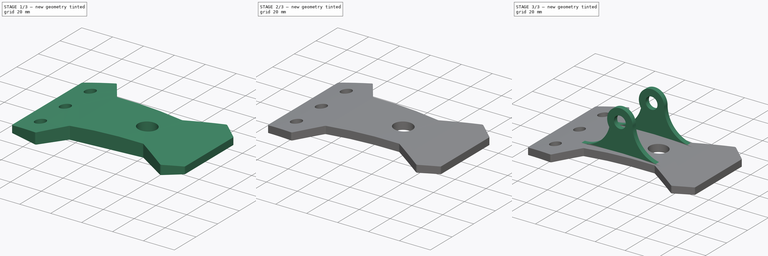
[diagram: build sequence overview — one tinted view per stage of 3, left to right]
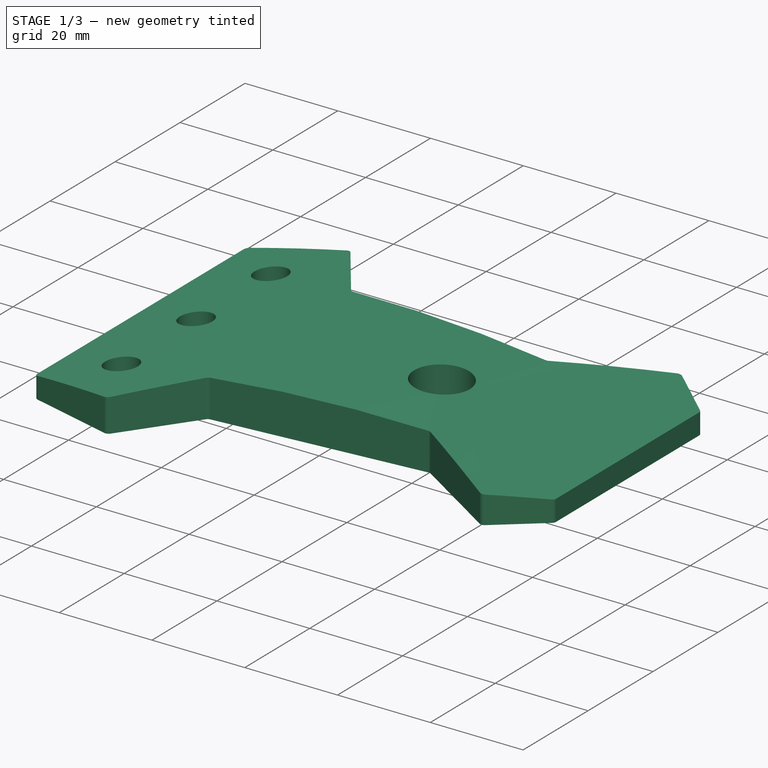
[diagram: stage 1 of 3 — iso view after this stage's code; geometry added in this stage tinted green]
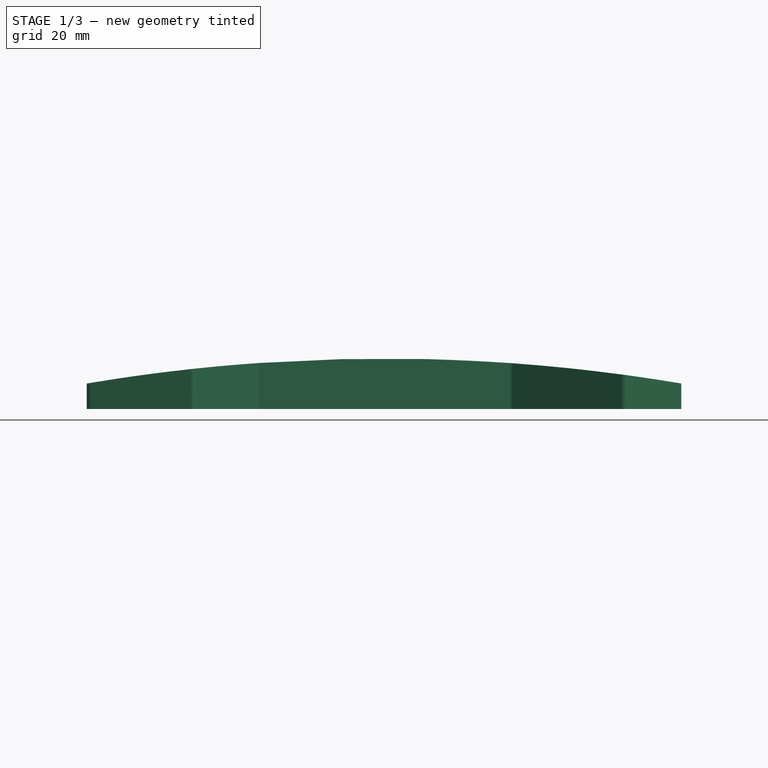
[diagram: stage 1 of 3 — front view after this stage's code; geometry added in this stage tinted green]
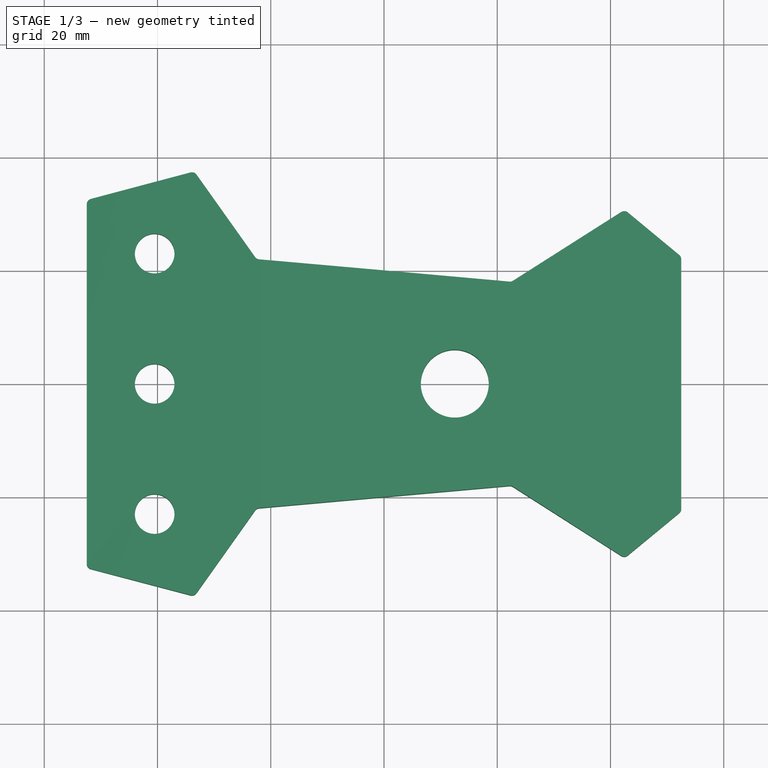
[diagram: stage 1 of 3 — top view after this stage's code; geometry added in this stage tinted green]
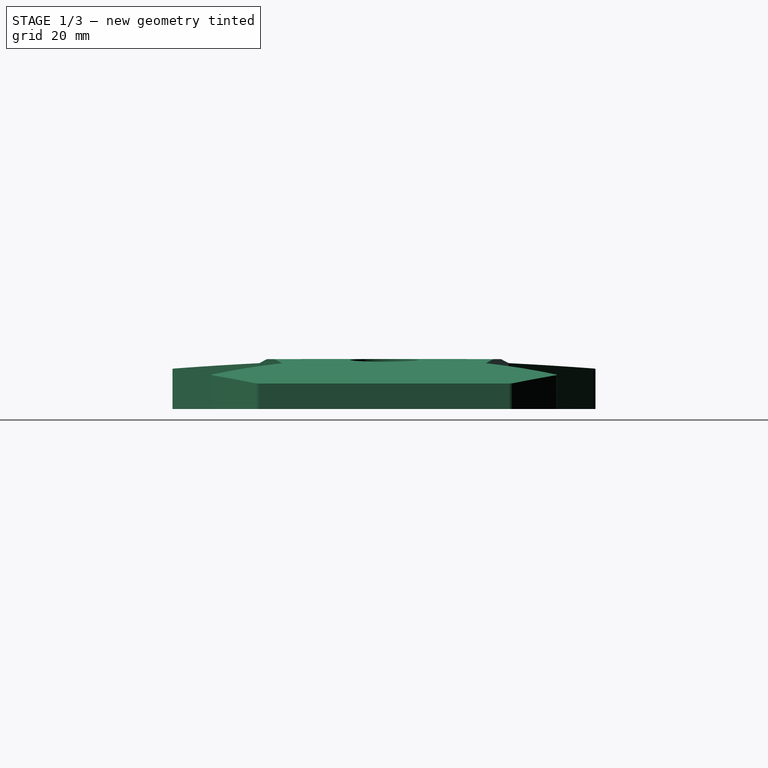
[diagram: stage 1 of 3 — right view after this stage's code; geometry added in this stage tinted green]
FCSTD DOCUMENT  (FreeCAD 0.18R4 (GitTag))
Label: ClipLampeAlix
License: All rights reserved
LicenseURL: http://en.wikipedia.org/wiki/All_rights_reserved
objects: Sketcher::SketchObject×5, PartDesign::Pad×3, PartDesign::Plane×2, PartDesign::Pocket×2, Spreadsheet::Sheet×1, PartDesign::Mirrored×1, PartDesign::Body×1
note: 19 computed .brp shape members not serialized (recipe doc carries the construction recipe); baked Part::Feature solids carry a one-line shape summary decoded from their .brp

FEATURE [Sketcher::SketchObject] Sketch  label="BasePlateFlat"
  MapMode = 5
  Support = -> [XY_Plane]
  expr: Constraints[77] = Dimensions.AngleRadius
  expr: Constraints[76] = Dimensions.AngleRadius
  expr: Constraints[73] = Dimensions.AngleRadius
  expr: Constraints[70] = Dimensions.AngleRadius
  expr: Constraints[68] = Dimensions.AngleRadius
  expr: Constraints[67] = Dimensions.AngleRadius
  expr: Constraints[39] = Dimensions.WireHoleToHeight6
  expr: Constraints[38] = Dimensions.SuckerHoleCentreToHeight1
  expr: Constraints[74] = Dimensions.AngleRadius
  expr: Constraints[32] = Dimensions.WidthTo1
  expr: Constraints[3] = Dimensions.SuckerHolesSeparation
  expr: Constraints[0] = Dimensions.SuckerHoleRadius
  expr: Constraints[36] = Dimensions.WidthTo5
  expr: Constraints[34] = Dimensions.WidthTo3
  expr: Constraints[18] = Dimensions.Height1
  expr: Constraints[31] = Dimensions.WidthTo1 / 2
  expr: Constraints[21] = Dimensions.Height3
  expr: Constraints[66] = Dimensions.AngleRadius
  expr: Constraints[33] = Dimensions.WidthTo2
  expr: Constraints[69] = Dimensions.AngleRadius
  expr: Constraints[71] = Dimensions.AngleRadius
  expr: Constraints[23] = Dimensions.Height5
  expr: Constraints[19] = Dimensions.Height6
  expr: Constraints[22] = Dimensions.Height4
  expr: Constraints[75] = Dimensions.AngleRadius
  expr: Constraints[5] = Dimensions.WireHoleRadius
  expr: Constraints[2] = Dimensions.SuckerHoleRadius
  expr: Constraints[72] = Dimensions.AngleRadius
  expr: Constraints[1] = Dimensions.SuckerHoleRadius
  expr: Constraints[35] = Dimensions.WidthTo4
  sketch-geometry (41):
    g0: Circle CenterX=-40.5 CenterY=0 CenterZ=0 NormalX=0 NormalY=0 NormalZ=1 AngleXU=0 Radius=3.5
    g1: Circle CenterX=-40.5 CenterY=23 CenterZ=0 NormalX=0 NormalY=0 NormalZ=1 AngleXU=0 Radius=3.5
    g2: Circle CenterX=-40.5 CenterY=-23 CenterZ=0 NormalX=0 NormalY=0 NormalZ=1 AngleXU=0 Radius=3.5
    g3: Circle CenterX=12.5 CenterY=0 CenterZ=0 NormalX=0 NormalY=0 NormalZ=1 AngleXU=0 Radius=6
    g4: LineSegment [constr] StartX=-52.5 StartY=32.5 StartZ=0 EndX=-52.5 EndY=-32.5 EndZ=0
    g5: LineSegment [constr] StartX=-52.5 StartY=-32.5 StartZ=0 EndX=-33.5 EndY=-37.5 EndZ=0
    g6: LineSegment [constr] StartX=-33.5 StartY=-37.5 StartZ=0 EndX=-22.5 EndY=-22 EndZ=0
    g7: LineSegment [constr] StartX=-22.5 StartY=-22 StartZ=0 EndX=22.5 EndY=-18 EndZ=0
    g8: LineSegment [constr] StartX=22.5 StartY=-18 StartZ=0 EndX=42.5 EndY=-30.75 EndZ=0
    g9: LineSegment [constr] StartX=42.5 StartY=-30.75 StartZ=0 EndX=52.5 EndY=-22.5 EndZ=0
    g10: LineSegment [constr] StartX=52.5 StartY=-22.5 StartZ=0 EndX=52.5 EndY=22.5 EndZ=0
    g11: LineSegment [constr] StartX=52.5 StartY=22.5 StartZ=0 EndX=42.5 EndY=30.75 EndZ=0
    g12: LineSegment [constr] StartX=42.5 StartY=30.75 StartZ=0 EndX=22.5 EndY=18 EndZ=0
    g13: LineSegment [constr] StartX=22.5 StartY=18 StartZ=0 EndX=-22.5 EndY=22 EndZ=0
    g14: LineSegment [constr] StartX=-22.5 StartY=22 StartZ=0 EndX=-33.5 EndY=37.5 EndZ=0
    g15: LineSegment [constr] StartX=-33.5 StartY=37.5 StartZ=0 EndX=-52.5 EndY=32.5 EndZ=0
    g16: LineSegment [constr] StartX=-33.5 StartY=37.5 StartZ=0 EndX=-52.5 EndY=32.5 EndZ=0
    g17: LineSegment StartX=-34.1694 StartY=37.3238 StartZ=0 EndX=-51.7545 EndY=32.6962 EndZ=0
    g18: LineSegment StartX=-52.5 StartY=31.7291 StartZ=0 EndX=-52.5 EndY=-31.7291 EndZ=0
    g19: LineSegment StartX=-51.7545 StartY=-32.6962 StartZ=0 EndX=-34.1694 EndY=-37.3238 EndZ=0
    g20: LineSegment StartX=-33.0994 StartY=-36.9355 StartZ=0 EndX=-22.7672 EndY=-22.3765 EndZ=0
    g21: LineSegment StartX=-22.0402 StartY=-21.9591 StartZ=0 EndX=22.1609 EndY=-18.0301 EndZ=0
    g22: LineSegment StartX=22.787 StartY=-18.183 StartZ=0 EndX=41.8869 EndY=-30.3592 EndZ=0
    g23: LineSegment StartX=43.0608 StartY=-30.2873 StartZ=0 EndX=52.1364 EndY=-22.8 EndZ=0
    g24: LineSegment StartX=52.5 StartY=-22.0286 StartZ=0 EndX=52.5 EndY=22.0286 EndZ=0
    g25: LineSegment StartX=52.1364 StartY=22.8 StartZ=0 EndX=43.0608 EndY=30.2873 EndZ=0
    g26: LineSegment StartX=41.8869 StartY=30.3592 StartZ=0 EndX=22.787 EndY=18.183 EndZ=0
    g27: LineSegment StartX=22.1609 StartY=18.0301 StartZ=0 EndX=-22.0402 EndY=21.9591 EndZ=0
    g28: LineSegment StartX=-22.7672 StartY=22.3765 StartZ=0 EndX=-33.0994 EndY=36.9355 EndZ=0
    g29: ArcOfCircle CenterX=-33.9149 CenterY=36.3568 CenterZ=0 NormalX=0 NormalY=0 NormalZ=1 AngleXU=0 Radius=1 StartAngle=0.617191 EndAngle=1.82812
    g30: ArcOfCircle CenterX=-51.5 CenterY=31.7291 CenterZ=0 NormalX=0 NormalY=0 NormalZ=1 AngleXU=0 Radius=1 StartAngle=1.82812 EndAngle=3.14159
    g31: ArcOfCircle CenterX=-21.9517 CenterY=22.9552 CenterZ=0 NormalX=0 NormalY=0 NormalZ=1 AngleXU=0 Radius=1 StartAngle=3.75878 EndAngle=4.62373
    g32: ArcOfCircle CenterX=22.2495 CenterY=19.0262 CenterZ=0 NormalX=0 NormalY=0 NormalZ=1 AngleXU=0 Radius=1 StartAngle=4.62373 EndAngle=5.27993
    g33: ArcOfCircle CenterX=42.4245 CenterY=29.5159 CenterZ=0 NormalX=0 NormalY=0 NormalZ=1 AngleXU=0 Radius=1 StartAngle=0.880996 EndAngle=2.13833
    g34: ArcOfCircle CenterX=51.5 CenterY=22.0286 CenterZ=0 NormalX=0 NormalY=0 NormalZ=1 AngleXU=0 Radius=1 StartAngle=0 EndAngle=0.880996
    g35: ArcOfCircle CenterX=51.5 CenterY=-22.0286 CenterZ=0 NormalX=0 NormalY=0 NormalZ=1 AngleXU=0 Radius=1 StartAngle=5.40219 EndAngle=6.28319
    g36: ArcOfCircle CenterX=42.4245 CenterY=-29.5159 CenterZ=0 NormalX=0 NormalY=0 NormalZ=1 AngleXU=0 Radius=1 StartAngle=4.14485 EndAngle=5.40219
    g37: ArcOfCircle CenterX=22.2495 CenterY=-19.0262 CenterZ=0 NormalX=0 NormalY=0 NormalZ=1 AngleXU=0 Radius=1 StartAngle=1.00326 EndAngle=1.65945
    g38: ArcOfCircle CenterX=-21.9517 CenterY=-22.9552 CenterZ=0 NormalX=0 NormalY=0 NormalZ=1 AngleXU=0 Radius=1 StartAngle=1.65945 EndAngle=2.5244
    g39: ArcOfCircle CenterX=-33.9149 CenterY=-36.3568 CenterZ=0 NormalX=0 NormalY=0 NormalZ=1 AngleXU=0 Radius=1 StartAngle=4.45507 EndAngle=5.66599
    g40: ArcOfCircle CenterX=-51.5 CenterY=-31.7291 CenterZ=0 NormalX=0 NormalY=0 NormalZ=1 AngleXU=0 Radius=1 StartAngle=3.14159 EndAngle=4.45507
  constraints (93):
    c: Radius(g0) = 3.5
    c: Radius(g2) = 3.5
    c: Radius(g1) = 3.5
    c: DistanceY(g0,g1) = 23
    c: Symmetric(g2,g1,g-1)
    c: Radius(g3) = 6
    c: DistanceY(g-1,g3) = 0
    c: Coincident(g5,g4)
    c: Coincident(g6,g5)
    c: Coincident(g7,g6)
    c: Coincident(g8,g7)
    c: Coincident(g9,g8)
    c: Coincident(g10,g9)
    c: Coincident(g11,g10)
    c: Coincident(g12,g11)
    c: Coincident(g13,g12)
    c: Coincident(g14,g13)
    c: Coincident(g15,g14)
    c: DistanceY(g4,g4) = 65
    c: DistanceY(g10,g10) = 45
    c: DistanceY(g5,g14) = 75
    c: DistanceY(g6,g13) = 44
    c: DistanceY(g7,g12) = 36
    c: DistanceY(g8,g11) = 61.5
    c: Coincident(g4,g15)
    c: Symmetric(g4,g4,g-1)
    c: Symmetric(g14,g5,g-1)
    c: Symmetric(g13,g6,g-1)
    c: Symmetric(g12,g7,g-1)
    c: Symmetric(g11,g8,g-1)
    c: Symmetric(g10,g9,g-1)
    c: DistanceX(g4,g-1) = 52.5
    c: DistanceX(g4,g10) = 105
    c: DistanceX(g14,g10) = 86
    c: DistanceX(g13,g10) = 75
    c: DistanceX(g12,g10) = 30
    c: DistanceX(g11,g10) = 10
    c: Vertical(g1,g0)
    c: DistanceX(g4,g1) = 12
    c: DistanceX(g3,g9) = 40
    c: DistanceY(g-1,g0) = 0
    c: Coincident(g14,g16)
    c: Tangent(g28,g29) = -1.5708
    c: Tangent(g17,g29) = -1.5708
    c: Tangent(g18,g30) = -1.5708
    c: Tangent(g17,g30) = -1.5708
    c: Tangent(g28,g31) = 1.5708
    c: Tangent(g27,g31) = 1.5708
    c: Tangent(g27,g32) = 1.5708
    c: Tangent(g26,g32) = 1.5708
    c: Tangent(g26,g33) = -1.5708
    c: Tangent(g25,g33) = -1.5708
    c: Tangent(g25,g34) = -1.5708
    c: Tangent(g24,g34) = -1.5708
    c: Tangent(g24,g35) = -1.5708
    c: Tangent(g23,g35) = -1.5708
    c: Tangent(g23,g36) = -1.5708
    c: Tangent(g22,g36) = -1.5708
    c: Tangent(g22,g37) = 1.5708
    c: Tangent(g21,g37) = 1.5708
    c: Tangent(g21,g38) = 1.5708
    c: Tangent(g20,g38) = 1.5708
    c: Tangent(g20,g39) = -1.5708
    c: Tangent(g19,g39) = -1.5708
    c: Tangent(g19,g40) = -1.5708
    c: Tangent(g18,g40) = -1.5708
    c: Radius(g30) = 1
    c: Radius(g29) = 1
    c: Radius(g31) = 1
    c: Radius(g40) = 1
    c: Radius(g39) = 1
    c: Radius(g38) = 1
    c: Radius(g37) = 1
    c: Radius(g36) = 1
    c: Radius(g35) = 1
    c: Radius(g33) = 1
    c: Radius(g34) = 1
    c: Radius(g32) = 1
    c: Vertical(g18)
    c: Vertical(g24)
    c: Coincident(g16,g4)
    c: Vertical(g18,g4)
    c: Vertical(g24,g9)
    c: Tangent(g25,g11) = -1.5708
    c: Tangent(g26,g12) = -1.5708
    c: Tangent(g27,g13) = -1.5708
    c: Tangent(g17,g15) = -1.5708
    c: Tangent(g28,g14) = -1.5708
    c: Tangent(g19,g5) = -1.5708
    c: Tangent(g20,g6) = -1.5708
    c: Tangent(g21,g7) = -1.5708
    c: Tangent(g22,g8) = -1.5708
    c: Tangent(g23,g9) = -1.5708
FEATURE [Spreadsheet::Sheet] Spreadsheet  label="Dimensions"
  cells = A1=BaseHeight1; B1(BaseHeight1)==65mm; A2=BaseHeight2; B2(BaseHeight2)==75mm; A3=BaseHeight3; B3(BaseHeight3)==44mm; A4=BaseHeight4; B4(BaseHeight4)==36mm; A5=BaseHeight5; B5(BaseHeight5)==61.5mm; A6=BaseHeight6; B6(BaseHeight6)==45mm; A7=BaseWidthTo1; B7(BaseWidthTo1)==105mm; A8=BaseWidthTo2; B8(BaseWidthTo2)==86mm; A9=BaseWidthTo3; B9(BaseWidthTo3)==75mm; A10=BaseWidthTo4; B10(BaseWidthTo4)==30mm; A11=BaseWidthTo5; B11(BaseWidthTo5)==10mm; A12=BaseCornerRadius; B12(BaseCornerRadius)==1mm; A13=BaseCurve; B13(BaseCurve)==4mm; C13=Base curve; A14=BaseThicknness; B14(BaseThicknness)==4.5mm; A15=BaseInitialThickness; B15(BaseInitialThickness)==9mm; A16=SuckerHoleCentreToHeight1; B16(SuckerHoleCentreToHeight1)==12mm; A17=SuckerHoleRadius; B17(SuckerHoleRadius)==3.5mm; A18=SuckerHolesSeparation; B18(SuckerHolesSeparation)==23mm; A19=WireHoleToHeight6; B19(WireHoleToHeight6)==40mm; A20=WireHoleRadius; B20(WireHoleRadius)==6mm; A21=AxisOuterRadius; B21(AxisOuterRadius)==8.5mm; A22=AxisInnerRadius; B22(AxisInnerRadius)==4mm; A23=AxisThickness; B23(AxisThickness)==3.2mm; A24=AxisHeightFromBaseTop; B24(AxisHeightFromBaseTop)==22.5mm - AxisOuterRadius / 2; A25=AxisHeightFromBaseBottom; B25(AxisHeightFromBaseBottom)==AxisHeightFromBaseTop + BaseInitialThickness; A26=AxisOuterSeparation; B26(AxisOuterSeparation)==33.5mm; C26==AxisOuterSeparation / 2; A27=AxisCentreFromHeight1; B27(AxisCentreFromHeight1)==57mm; A28=CableTieBoxLength; B28(CableTieBoxLength)==12mm; A29=CableTieBoxHeight; B29(CableTieBoxHeight)==12.5mm; A30=CableTieBoxWidth; B30(CableTieBoxWidth)==10mm; A31=CableTieXWallThickness; B31(CableTieXWallThickness)==5mm; A32=CableTieZWallThickness; B32(CableTieZWallThickness)==2mm; A33=CableTieScrewThreadRadius; B33(CableTieScrewThreadRadius)==2.8mm; A34=CableTieToHeight6Separation; B34(CableTieToHeight6Separation)==17mm; A35=CableTieToBase; B35(CableTieToBase)==BaseInitialThickness - 1.5mm
FEATURE [PartDesign::Pad] Pad
  Length = 9
  Length2 = 100
  Profile = -> Sketch
  Type = 0
  expr: Length = Spreadsheet.BaseInitialThickness1
FEATURE [PartDesign::Plane] DatumPlane  label="DatumPlaneForAxis"
  AttachmentOffset = pos=(0,0,13.55) rot=(0,0,1;0rad)
  Length = 24
  MapMode = 5
  Placement = pos=(0,-13.55,-3e-15) rot=(1,0,0;1.5708rad)
  ResizeMode = 0
  Support = -> [XZ_Plane]
  Width = 24
  expr: AttachmentOffset.Base.z = Dimensions.AxisOuterSeparation / 2 - Dimensions.AxisThickness
FEATURE [Sketcher::SketchObject] Sketch003  label="AxisBracket1"
  MapMode = 5
  Placement = pos=(0,-13.55,-3e-15) rot=(1,0,0;1.5708rad)
  Support = -> [DatumPlane]
  expr: Constraints[27] = Dimensions.AxisHeightFromBaseTop + 1mm
  expr: Constraints[3] = Spreadsheet.AxisHeightFromBaseBottom
  expr: Constraints[28] = Dimensions.AxisHeightFromBaseTop + 1mm
  expr: Constraints[5] = Dimensions.AxisCentreFromHeight1
  expr: Constraints[2] = Dimensions.AxisInnerRadius
  expr: Constraints[1] = Dimensions.AxisOuterRadius
  sketch-geometry (14):
    g0: ArcOfCircle CenterX=-1.7622 CenterY=27.25 CenterZ=0 NormalX=0 NormalY=0 NormalZ=1 AngleXU=0 Radius=8.5 StartAngle=0 EndAngle=3.73341
    g1: Circle CenterX=-1.7622 CenterY=27.25 CenterZ=0 NormalX=0 NormalY=0 NormalZ=1 AngleXU=0 Radius=4
    g2: GeomPoint X=-58.7622 Y=0 Z=0
    g3: ArcOfCircle CenterX=-27.4734 CenterY=27.25 CenterZ=0 NormalX=0 NormalY=0 NormalZ=1 AngleXU=0 Radius=19.25 StartAngle=4.71239 EndAngle=6.03429
    g4: LineSegment [constr] StartX=-27.4734 StartY=27.25 StartZ=0 EndX=-8.22341 EndY=27.25 EndZ=0
    g5: LineSegment [constr] StartX=-8.22341 StartY=27.25 StartZ=0 EndX=-8.22341 EndY=8 EndZ=0
    g6: LineSegment [constr] StartX=-8.22341 StartY=8 StartZ=0 EndX=-27.4734 EndY=8 EndZ=0
    g7: LineSegment [constr] StartX=-27.4734 StartY=8 StartZ=0 EndX=-27.4734 EndY=27.25 EndZ=0
    g8: LineSegment [constr] StartX=6.7378 StartY=27.25 StartZ=0 EndX=25.9878 EndY=27.25 EndZ=0
    g9: LineSegment [constr] StartX=25.9878 StartY=27.25 StartZ=0 EndX=25.9878 EndY=8 EndZ=0
    g10: LineSegment [constr] StartX=25.9878 StartY=8 StartZ=0 EndX=5.28684 EndY=8 EndZ=0
    g11: LineSegment [constr] StartX=5.28684 StartY=8 StartZ=0 EndX=5.28684 EndY=22.5002 EndZ=0
    g12: ArcOfCircle CenterX=25.9878 CenterY=27.25 CenterZ=0 NormalX=0 NormalY=0 NormalZ=1 AngleXU=0 Radius=19.25 StartAngle=3.14159 EndAngle=4.71239
    g13: LineSegment StartX=-27.4734 StartY=8 StartZ=0 EndX=25.9878 EndY=8 EndZ=0
  constraints (37):
    c: Coincident(g1,g0)
    c: Radius(g0) = 8.5
    c: Radius(g1) = 4
    c: DistanceY(g-1,g0) = 27.25
    c: PointOnObject(g2,g-1)
    c: DistanceX(g2,g0) = 57
    c: PointOnObject(g11,g0)
    c: Horizontal(g3,g0)
    c: Coincident(g4,g5)
    c: Coincident(g5,g6)
    c: Coincident(g6,g7)
    c: Coincident(g7,g4)
    c: Horizontal(g4)
    c: Horizontal(g6)
    c: Vertical(g5)
    c: Vertical(g7)
    c: Coincident(g4,g3)
    c: Coincident(g8,g9)
    c: Coincident(g9,g10)
    c: Coincident(g10,g11)
    c: Horizontal(g8)
    c: Horizontal(g10)
    c: Vertical(g9)
    c: Vertical(g11)
    c: Equal(g4,g7)
    c: Equal(g8,g9)
    c: Coincident(g3,g6)
    c: DistanceY(g7,g7) = 19.25
    c: DistanceY(g9,g9) = 19.25
    c: Coincident(g12,g8)
    c: PointOnObject(g12,g9)
    c: Coincident(g13,g3)
    c: Coincident(g13,g12)
    c: Horizontal(g13)
    c: Coincident(g0,g8)
    c: Coincident(g0,g3)
    c: Coincident(g0,g12)
FEATURE [Sketcher::SketchObject] Sketch005  label="BottomBaseArch"
  MapMode = 5
  Placement = pos=(0,-37.5,8e-15) rot=(1,0,0;1.5708rad)
  sketch-geometry (5):
    g0: GeomPoint X=-52.5098 Y=0 Z=0
    g1: GeomPoint X=52.5169 Y=0 Z=0
    g2: GeomPoint X=0 Y=4.00034 Z=0
    g3: ArcOfCircle CenterX=0.0035515 CenterY=-342.677 CenterZ=0 NormalX=0 NormalY=0 NormalZ=1 AngleXU=0 Radius=346.677 StartAngle=1.41873 EndAngle=1.72286
    g4: LineSegment StartX=-52.5098 StartY=0 StartZ=0 EndX=52.5169 EndY=0 EndZ=0
  constraints (8):
    c: PointOnObject(g0,g-1)
    c: PointOnObject(g1,g-1)
    c: PointOnObject(g2,g-2)
    c: Coincident(g3,g0)
    c: Coincident(g3,g1)
    c: PointOnObject(g2,g3)
    c: Coincident(g4,g0)
    c: Coincident(g4,g1)
FEATURE [Sketcher::SketchObject] Sketch006  label="TopBaseArch"
  MapMode = 5
  Placement = pos=(0,-37.5,8e-15) rot=(1,0,0;1.5708rad)
  expr: Constraints[15] = Spreadsheet.BaseInitialThickness1 - 0.1mm
  expr: Constraints[14] = Spreadsheet.BaseInitialThickness1
  expr: Constraints[10] = Spreadsheet.BaseInitialThickness1
  expr: Constraints[6] = Dimensions.WidthTo1
  expr: Constraints[8] = Spreadsheet.BaseInitialThickness1 - Spreadsheet.BaseThicknness1
  expr: Constraints[13] = Dimensions.WidthTo1 / 2
  expr: Constraints[7] = Spreadsheet.BaseInitialThickness1 - Spreadsheet.BaseThicknness1
  sketch-geometry (7):
    g0: GeomPoint X=-52.5 Y=4.5 Z=0
    g1: GeomPoint X=52.5 Y=4.5 Z=0
    g2: ArcOfCircle CenterX=4.99e-14 CenterY=-306.51 CenterZ=0 NormalX=0 NormalY=0 NormalZ=1 AngleXU=0 Radius=315.41 StartAngle=1.40357 EndAngle=1.73802
    g3: LineSegment StartX=-52.5 StartY=4.5 StartZ=0 EndX=-52.5 EndY=9 EndZ=0
    g4: LineSegment StartX=52.5 StartY=4.5 StartZ=0 EndX=52.5 EndY=9 EndZ=0
    g5: LineSegment StartX=52.5 StartY=9 StartZ=0 EndX=-52.5 EndY=9 EndZ=0
    g6: GeomPoint X=0 Y=8.9 Z=0
  constraints (17):
    c: Coincident(g2,g0)
    c: Coincident(g2,g1)
    c: Coincident(g3,g0)
    c: Vertical(g3)
    c: Coincident(g4,g1)
    c: Vertical(g4)
    c: DistanceX(g5,g5) = 105
    c: DistanceY(g3,g3) = 4.5
    c: DistanceY(g4,g4) = 4.5
    c: PointOnObject(g6,g2)
    c: DistanceY(g-1,g4) = 9
    c: Coincident(g5,g3)
    c: Coincident(g5,g4)
    c: DistanceX(g0,g-1) = 52.5
    c: DistanceY(g-1,g3) = 9
    c: DistanceY(g-1,g6) = 8.9
    c: DistanceX(g-1,g6) = 0
FEATURE [PartDesign::Pocket] Pocket001  label="TopBaseArch001"
  BaseFeature = -> Pad
  Length = 75
  Length2 = 100
  Profile = -> Sketch006
  Type = 0
  expr: Length = Dimensions.Height2
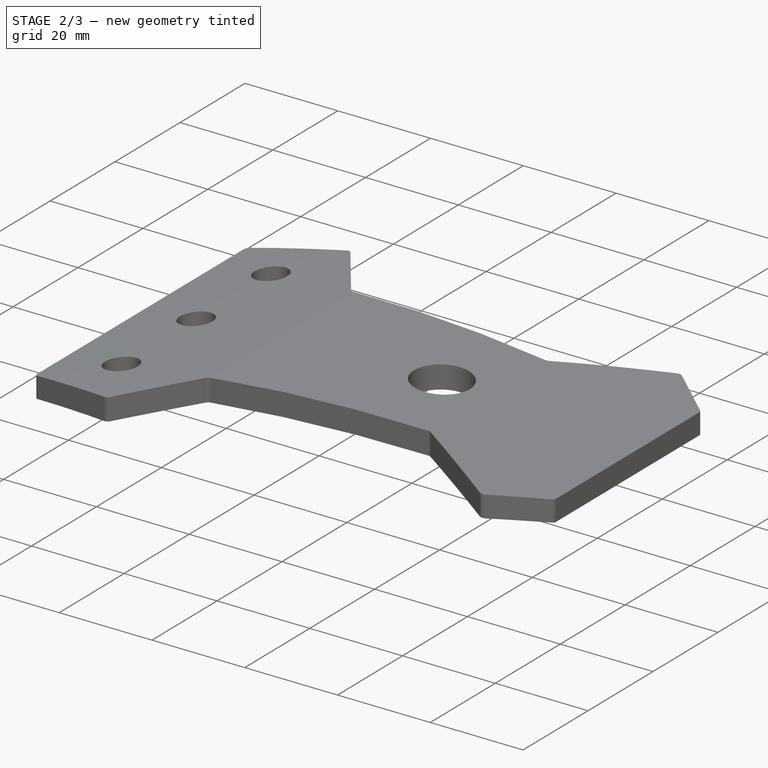
[diagram: stage 2 of 3 — iso view after this stage's code; geometry added in this stage tinted green]
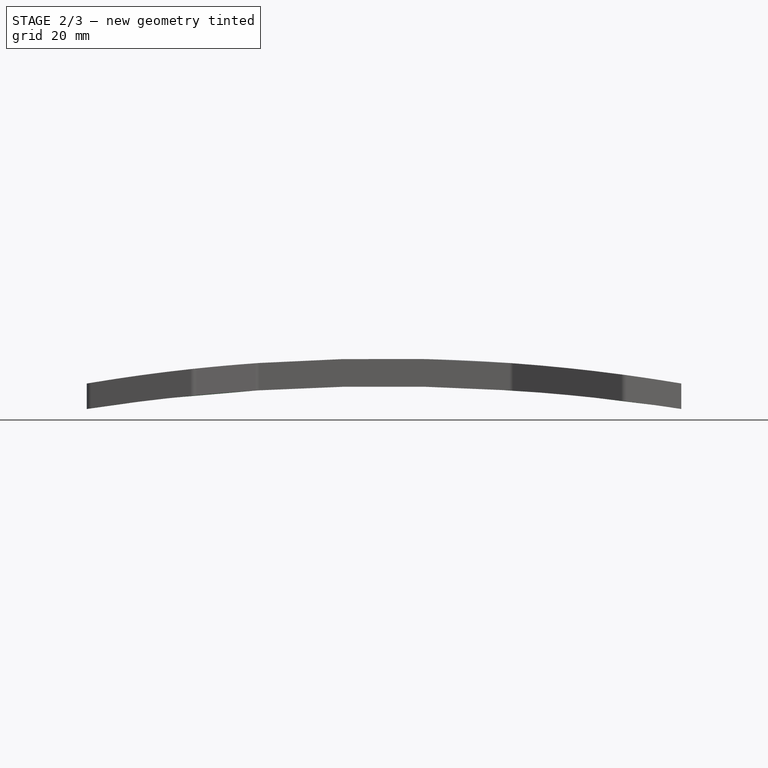
[diagram: stage 2 of 3 — front view after this stage's code; geometry added in this stage tinted green]
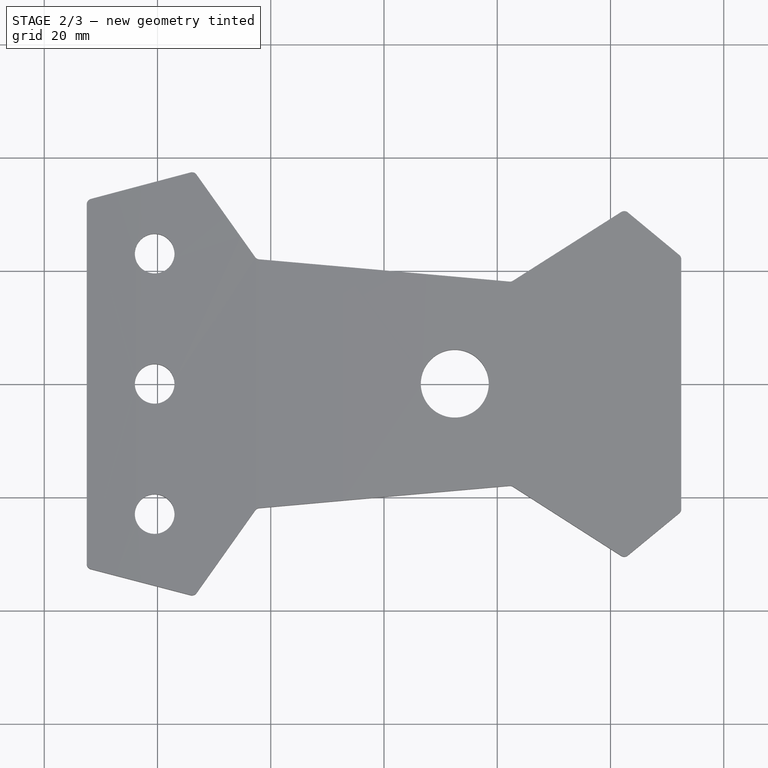
[diagram: stage 2 of 3 — top view after this stage's code; geometry added in this stage tinted green]
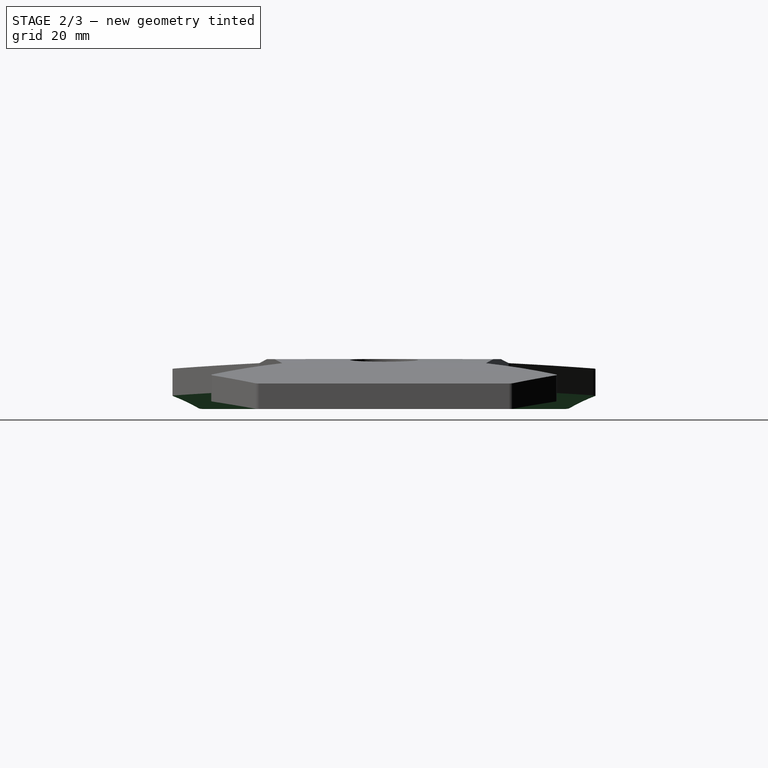
[diagram: stage 2 of 3 — right view after this stage's code; geometry added in this stage tinted green]
FEATURE [PartDesign::Pocket] Pocket  label="BottomBaseArch001"
  BaseFeature = -> Pocket001
  Length = 75
  Length2 = 100
  Profile = -> Sketch005
  Type = 0
  expr: Length = Dimensions.Height2
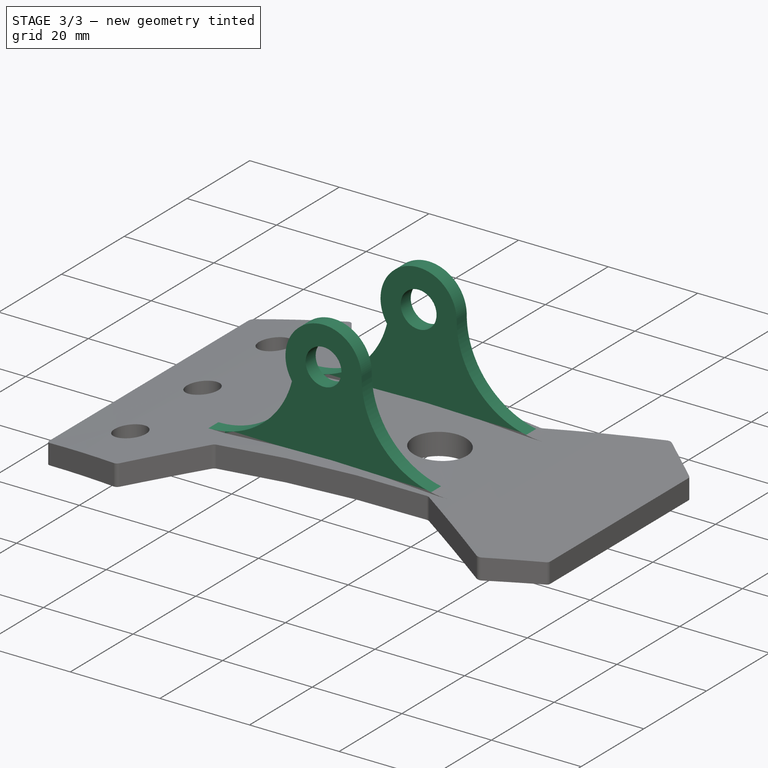
[diagram: stage 3 of 3 — iso view after this stage's code; geometry added in this stage tinted green]
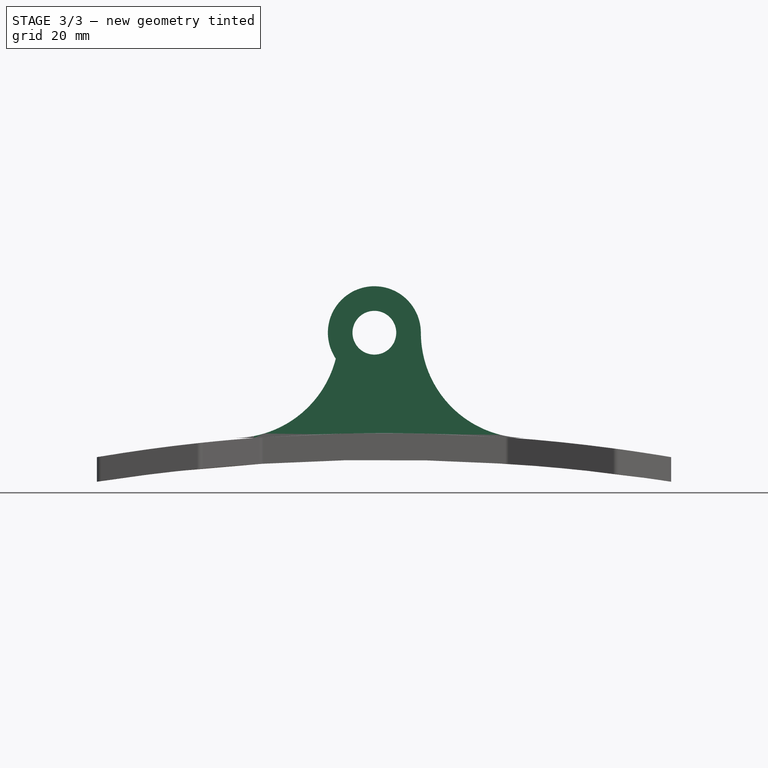
[diagram: stage 3 of 3 — front view after this stage's code; geometry added in this stage tinted green]
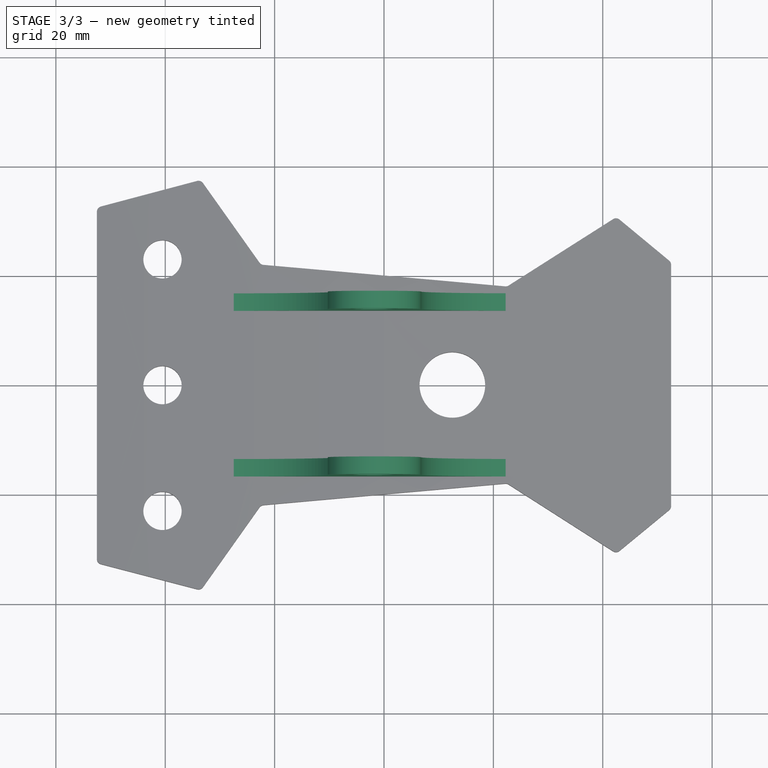
[diagram: stage 3 of 3 — top view after this stage's code; geometry added in this stage tinted green]
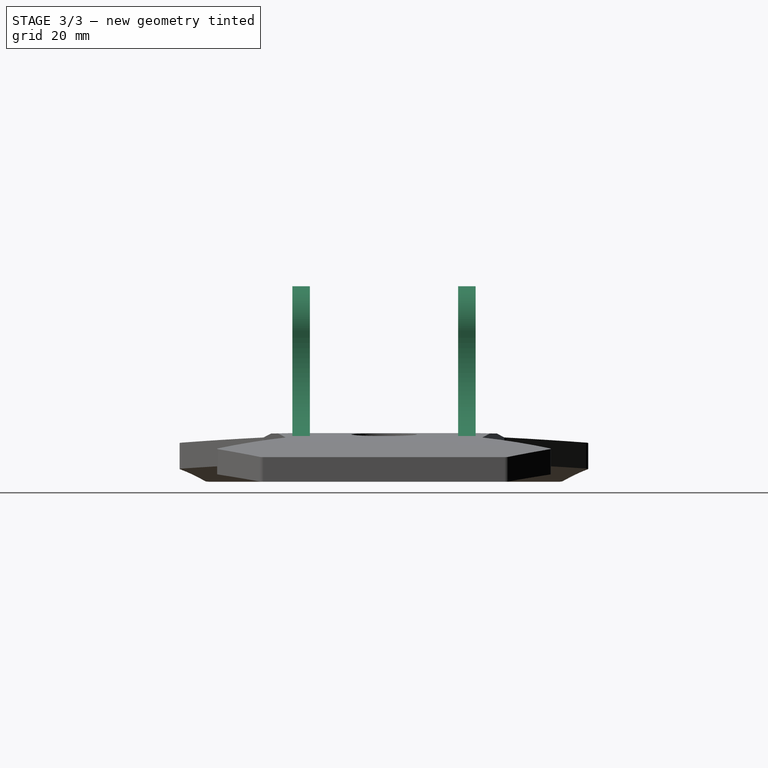
[diagram: stage 3 of 3 — right view after this stage's code; geometry added in this stage tinted green]
FEATURE [PartDesign::Pad] Pad001
  BaseFeature = -> Pocket
  Length = 3.2
  Length2 = 100
  Profile = -> Sketch003
  Type = 0
  expr: Length = Spreadsheet.AxisThickness
FEATURE [PartDesign::Mirrored] Mirrored
  BaseFeature = -> Pad001
  MirrorPlane = -> XZ_Plane
  Originals = -> [Pad001]
FEATURE [PartDesign::Plane] DatumPlane001  label="DatumPlaneForCableLocker"
  AttachmentOffset = pos=(0,0,-17) rot=(0,0,1;0rad)
  Length = 24
  MapMode = 5
  Placement = pos=(0,-5.6e-15,25) rot=(1,0,0;3.14159rad)
  ResizeMode = 0
  Support = -> [Mirrored]
  Width = 24
FEATURE [Sketcher::SketchObject] Sketch004  label="CableLocker"
  AttachmentOffset = pos=(35.5,0,0) rot=(0,1,0;1.5708rad)
  MapMode = 5
  Placement = pos=(35.5,-5.6e-15,25) rot=(0.707107,0,0.707107;3.14159rad)
  Support = -> [DatumPlane001]
  expr: Constraints[21] = Dimensions.CableTieBoxHeight
  expr: Constraints[20] = Dimensions.CableTieBoxHeight
  expr: AttachmentOffset.Base.x = Dimensions.WidthTo1 / 2 - Dimensions.CableTieToHeight6Separation
  expr: Constraints[23] = Dimensions.CableTieToBase
  expr: Constraints[19] = Dimensions.CableTieXWallThickness
  expr: Constraints[18] = Dimensions.CableTieBoxLength
  expr: Constraints[22] = Dimensions.CableTieBoxLength / 2
  expr: Constraints[17] = Dimensions.CableTieZWallThickness
  expr: Constraints[16] = Dimensions.CableTieZWallThickness
  sketch-geometry (8):
    g0: LineSegment StartX=-4 StartY=7.5 StartZ=0 EndX=-4 EndY=15 EndZ=0
    g1: LineSegment StartX=-4 StartY=15 StartZ=0 EndX=4 EndY=15 EndZ=0
    g2: LineSegment StartX=4 StartY=15 StartZ=0 EndX=4 EndY=7.5 EndZ=0
    g3: LineSegment StartX=4 StartY=7.5 StartZ=0 EndX=6 EndY=7.5 EndZ=0
    g4: LineSegment StartX=6 StartY=7.5 StartZ=0 EndX=6 EndY=20 EndZ=0
    g5: LineSegment StartX=6 StartY=20 StartZ=0 EndX=-6 EndY=20 EndZ=0
    g6: LineSegment StartX=-6 StartY=20 StartZ=0 EndX=-6 EndY=7.5 EndZ=0
    g7: LineSegment StartX=-6 StartY=7.5 StartZ=0 EndX=-4 EndY=7.5 EndZ=0
  constraints (24):
    c: Vertical(g0)
    c: Coincident(g0,g1)
    c: Coincident(g1,g2)
    c: Coincident(g2,g3)
    c: Coincident(g3,g4)
    c: Vertical(g4)
    c: Coincident(g4,g5)
    c: Horizontal(g5)
    c: Coincident(g5,g6)
    c: Coincident(g6,g7)
    c: Coincident(g7,g0)
    c: Horizontal(g7)
    c: Vertical(g6)
    c: Vertical(g2)
    c: Horizontal(g1)
    c: Horizontal(g3)
    c: DistanceX(g6,g0) = 2
    c: DistanceX(g2,g3) = 2
    c: DistanceX(g5,g4) = 12
    c: DistanceY(g1,g4) = 5
    c: DistanceY(g3,g4) = 12.5
    c: DistanceY(g6,g5) = 12.5
    c: DistanceX(g-1,g4) = 6
    c: DistanceY(g-1,g2) = 7.5
FEATURE [PartDesign::Pad] Pad002
  BaseFeature = -> Mirrored
  Length = 10
  Length2 = 100
  Profile = -> Sketch004
  Reversed = true
  Type = 0
  expr: Length = Dimensions.CableTieBoxWidth
FEATURE [PartDesign::Body] Body  label="Clip Lampe Alix"
  Group = -> [Sketch,Pad,Pocket001,Pocket,Pad001,DatumPlane,Mirrored,Pad002,DatumPlane001,Sketch003,Sketch004,Sketch005,Sketch006]
  Origin = -> Origin
  Tip = -> Mirrored
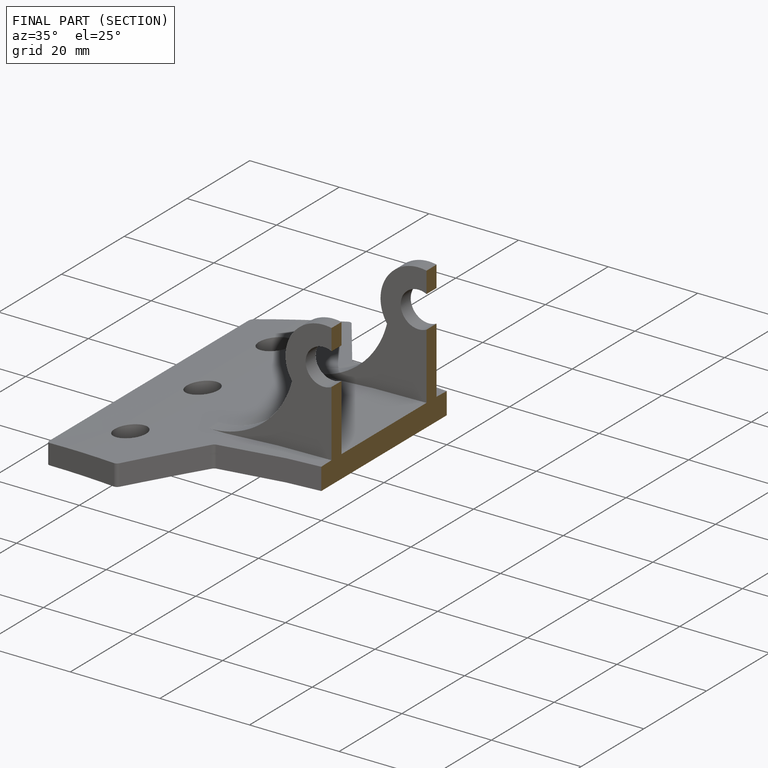
[diagram: finished part — half-section view (interior)]
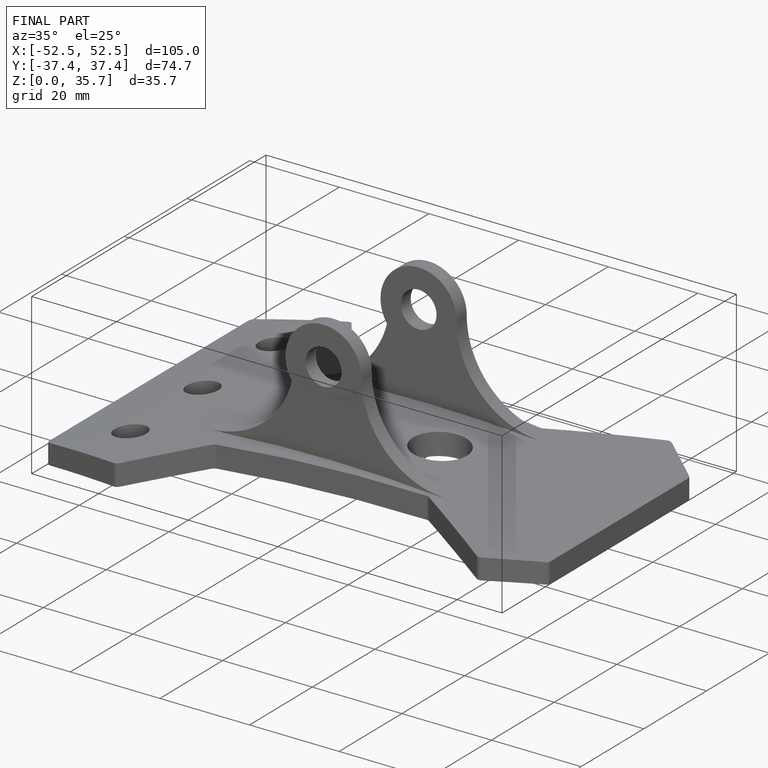
[diagram: finished part — iso view with bounding-box wireframe]
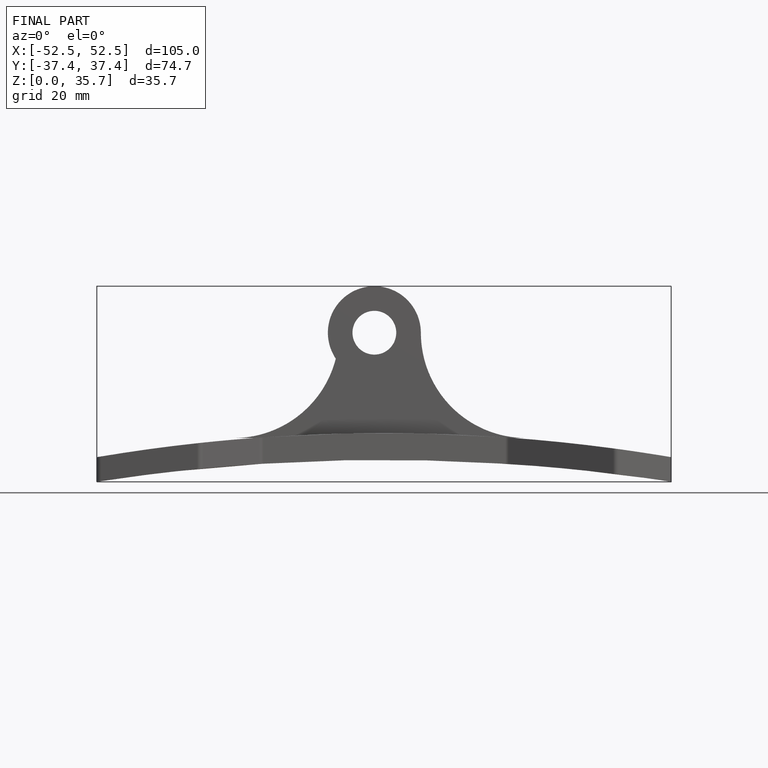
[diagram: finished part — front view with bounding-box wireframe]
